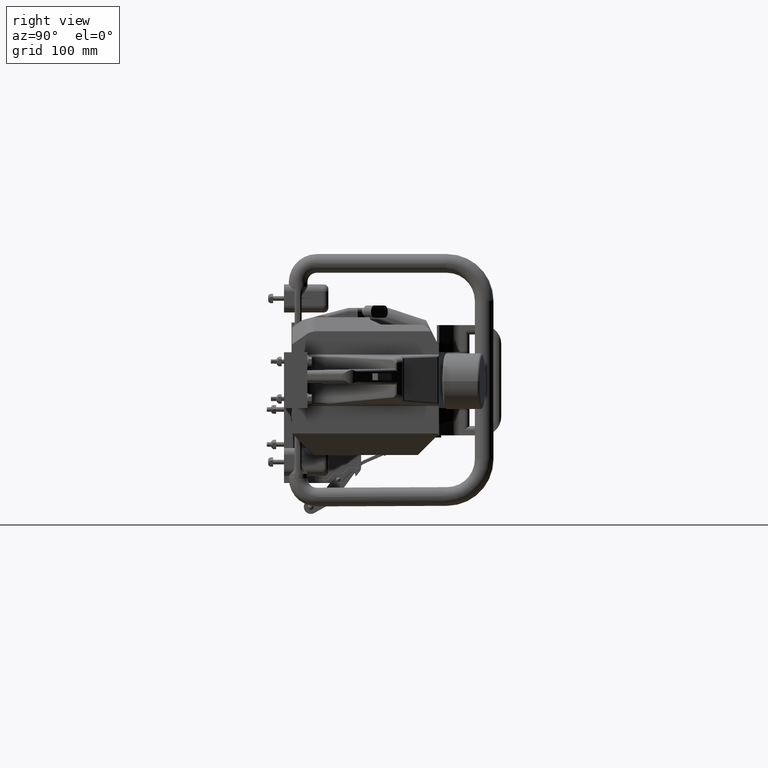
[diagram: clean part render]
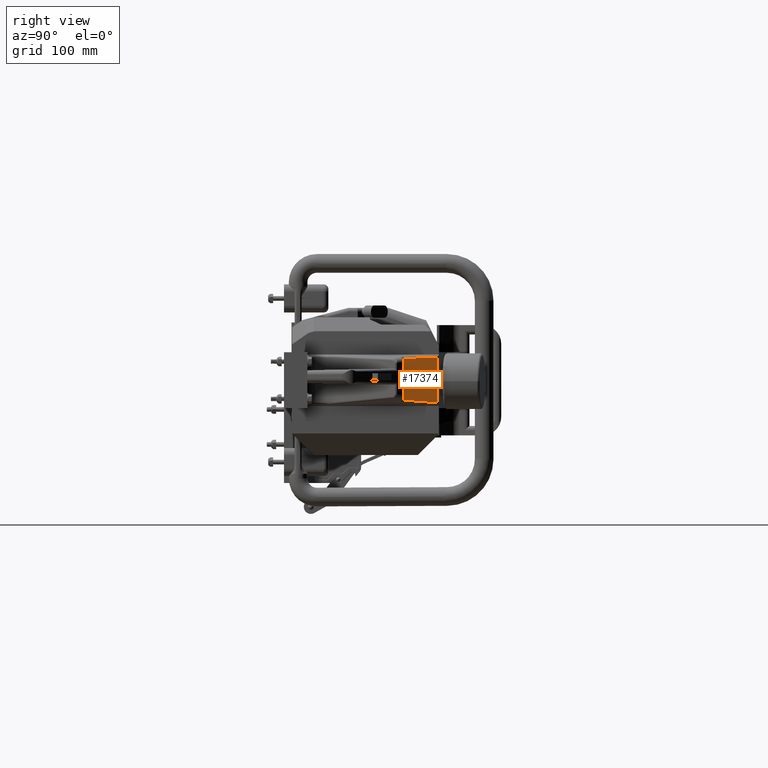
[diagram: same view with one face highlighted and labeled with its STEP entity id]
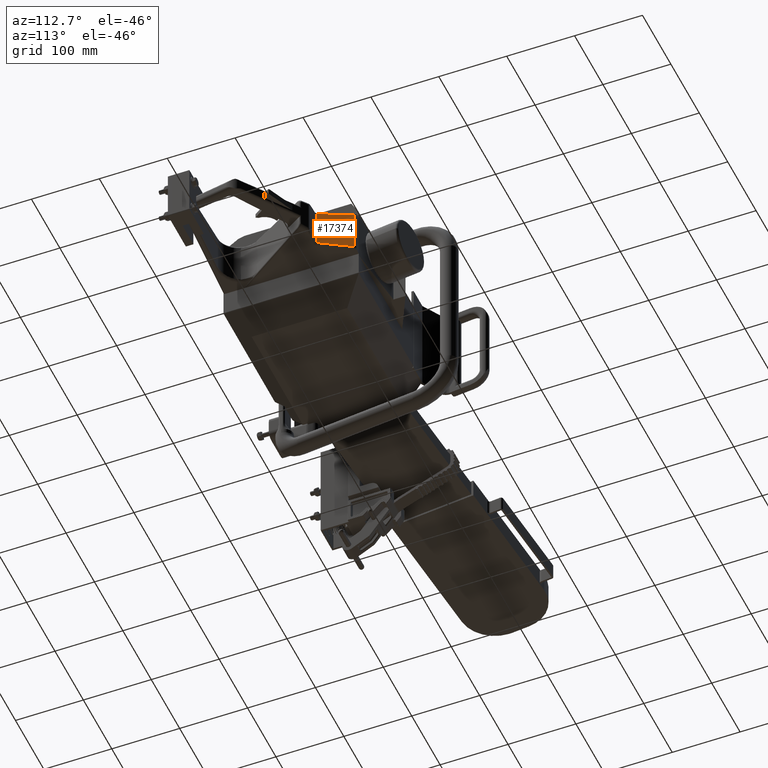
[diagram: same view with one face highlighted and labeled with its STEP entity id]
A machine part, right view. The second image highlights one B-rep face of the part: STEP entity #17374.
A second angle (auxiliary view) of the same face is appended — the face is thin or edge-on in the first view.
In plain terms, the highlighted planar face has unit normal (-0.8876, -0.4606, 0).
Its self-contained STEP definition (entity closure, byte-faithful):
#5035 = LINE ( 'NONE', #6298, #5039 ) ;
#5038 = LINE ( 'NONE', #6293, #5040 ) ;
#5039 = VECTOR ( 'NONE', #6299, 39.37007874015748100 ) ;
#5040 = VECTOR ( 'NONE', #6300, 39.37007874015748100 ) ;
#5042 = LINE ( 'NONE', #6301, #5043 ) ;
#5043 = VECTOR ( 'NONE', #6302, 39.37007874015748100 ) ;
#5044 = LINE ( 'NONE', #6303, #5045 ) ;
#5045 = VECTOR ( 'NONE', #6304, 39.37007874015748100 ) ;
#6293 = CARTESIAN_POINT ( 'NONE',  ( 16.80681778559339200, 6.166227887539339000, 3.647485222328033000 ) ) ;
#6298 = CARTESIAN_POINT ( 'NONE',  ( 16.67216802226631600, 6.425689679895535600, 1.333131536625711500 ) ) ;
#6299 = DIRECTION ( 'NONE',  ( 0.0000000000000000000, 0.0000000000000000000, -1.000000000000000000 ) ) ;
#6300 = DIRECTION ( 'NONE',  ( 0.4603395633852305200, -0.8870459572830319300, -0.03517038598202753400 ) ) ;
#6301 = CARTESIAN_POINT ( 'NONE',  ( 15.74639072506225200, 8.209605454569146600, -2.500468482186632500 ) ) ;
#6302 = DIRECTION ( 'NONE',  ( 0.0000000000000000000, 0.0000000000000000000, 1.000000000000000000 ) ) ;
#6303 = CARTESIAN_POINT ( 'NONE',  ( 16.58105403214303300, 6.601260721403321000, 1.423653854671216300 ) ) ;
#6304 = DIRECTION ( 'NONE',  ( -0.4595076542449395000, 0.8854429196594667500, -0.06959563000097163100 ) ) ;
#14239 = EDGE_LOOP ( 'NONE', ( #26400, #26402, #26404, #26406 ) ) ;
#17374 = ADVANCED_FACE ( 'NONE', ( #46811 ), #54653, .F. ) ;
#20713 = EDGE_CURVE ( 'NONE', #23783, #23784, #5035, .T. ) ;
#20714 = EDGE_CURVE ( 'NONE', #23782, #23783, #5038, .T. ) ;
#20715 = EDGE_CURVE ( 'NONE', #23781, #23782, #5042, .T. ) ;
#20716 = EDGE_CURVE ( 'NONE', #23784, #23781, #5044, .T. ) ;
#23781 = VERTEX_POINT ( 'NONE', #25464 ) ;
#23782 = VERTEX_POINT ( 'NONE', #25465 ) ;
#23783 = VERTEX_POINT ( 'NONE', #25466 ) ;
#23784 = VERTEX_POINT ( 'NONE', #25467 ) ;
#25464 = CARTESIAN_POINT ( 'NONE',  ( 15.74639072506225200, 8.209605454569146600, 1.297238291930629800 ) ) ;
#25465 = CARTESIAN_POINT ( 'NONE',  ( 15.74639072506225200, 8.209605454569146600, 3.728502871018498400 ) ) ;
#25466 = CARTESIAN_POINT ( 'NONE',  ( 16.67216802226631600, 6.425689679895535600, 3.657772593923419400 ) ) ;
#25467 = CARTESIAN_POINT ( 'NONE',  ( 16.67216802226631600, 6.425689679895535600, 1.437453702151346500 ) ) ;
#26400 = ORIENTED_EDGE ( 'NONE', *, *, #20715, .T. ) ;
#26402 = ORIENTED_EDGE ( 'NONE', *, *, #20714, .T. ) ;
#26404 = ORIENTED_EDGE ( 'NONE', *, *, #20713, .T. ) ;
#26406 = ORIENTED_EDGE ( 'NONE', *, *, #20716, .T. ) ;
#40640 = AXIS2_PLACEMENT_3D ( 'NONE', #54651, #54665, #54667 ) ;
#46811 = FACE_OUTER_BOUND ( 'NONE', #14239, .T. ) ;
#54651 = CARTESIAN_POINT ( 'NONE',  ( 16.70715717119103200, 6.358267747107039900, -2.500468482186632500 ) ) ;
#54653 = PLANE ( 'NONE',  #40640 ) ;
#54665 = DIRECTION ( 'NONE',  ( -0.8875950852027038000, -0.4606245376920395400, 0.0000000000000000000 ) ) ;
#54667 = DIRECTION ( 'NONE',  ( 0.4606245376920394800, -0.8875950852027036900, 0.0000000000000000000 ) ) ;